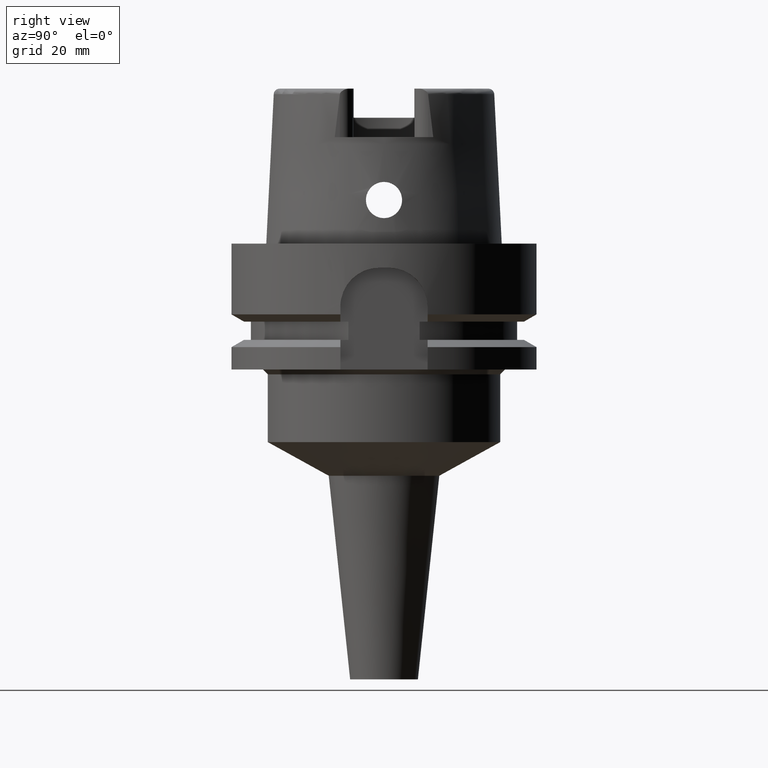
[diagram: clean part render]
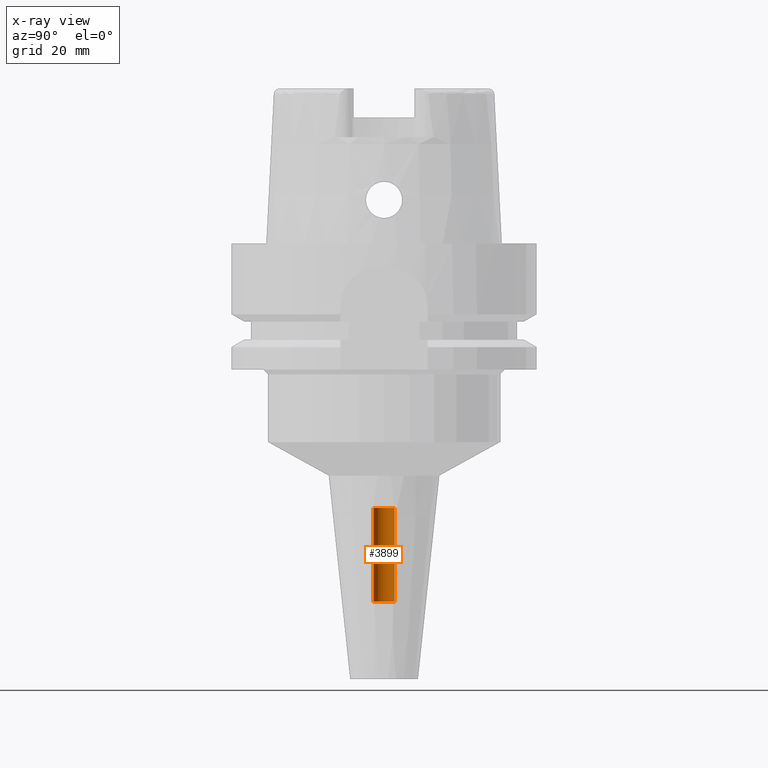
[diagram: x-ray — body ghosted, one internal face saturated and labeled with its STEP entity id]
A machine part, right view, then the same camera in x-ray: the body is ghosted and one INTERNAL B-rep face — a face not visible from any outside direction — is saturated and labeled: STEP entity #3899.
In plain terms, the highlighted cylindrical surface (edge-blend (fillet) strip) has radius 2.2 mm, axis along (0, 0, -1).
Its self-contained STEP definition (entity closure, byte-faithful):
#1782=CARTESIAN_POINT('',(0.E0,1.691237229622E-14,-7.4E1));
#1783=DIRECTION('',(0.E0,0.E0,-1.E0));
#1784=DIRECTION('',(0.E0,-1.E0,0.E0));
#1785=AXIS2_PLACEMENT_3D('',#1782,#1783,#1784);
#1814=DIRECTION('',(0.E0,0.E0,1.E0));
#1815=VECTOR('',#1814,1.94E1);
#1816=CARTESIAN_POINT('',(0.E0,-2.2E0,-7.4E1));
#1817=LINE('',#1816,#1815);
#1821=DIRECTION('',(0.E0,0.E0,1.E0));
#1822=VECTOR('',#1821,1.94E1);
#1823=CARTESIAN_POINT('',(0.E0,2.2E0,-7.4E1));
#1824=LINE('',#1823,#1822);
#1852=CARTESIAN_POINT('',(0.E0,1.691237229622E-14,-5.46E1));
#1853=DIRECTION('',(0.E0,0.E0,1.E0));
#1854=DIRECTION('',(0.E0,1.E0,0.E0));
#1855=AXIS2_PLACEMENT_3D('',#1852,#1853,#1854);
#2501=CARTESIAN_POINT('',(0.E0,-2.2E0,-7.4E1));
#2502=CARTESIAN_POINT('',(0.E0,2.2E0,-7.4E1));
#2503=VERTEX_POINT('',#2501);
#2504=VERTEX_POINT('',#2502);
#2505=CARTESIAN_POINT('',(0.E0,2.2E0,-5.46E1));
#2506=VERTEX_POINT('',#2505);
#2507=CARTESIAN_POINT('',(0.E0,-2.2E0,-5.46E1));
#2508=VERTEX_POINT('',#2507);
#3885=CARTESIAN_POINT('',(0.E0,1.691237229622E-14,3.81E1));
#3886=DIRECTION('',(0.E0,0.E0,-1.E0));
#3887=DIRECTION('',(0.E0,-1.E0,0.E0));
#3888=AXIS2_PLACEMENT_3D('',#3885,#3886,#3887);
#3889=CYLINDRICAL_SURFACE('',#3888,2.2E0);
#3891=ORIENTED_EDGE('',*,*,#3890,.F.);
#3892=ORIENTED_EDGE('',*,*,#3874,.F.);
#3894=ORIENTED_EDGE('',*,*,#3893,.T.);
#3896=ORIENTED_EDGE('',*,*,#3895,.F.);
#3897=EDGE_LOOP('',(#3891,#3892,#3894,#3896));
#3898=FACE_OUTER_BOUND('',#3897,.F.);
#1786=CIRCLE('',#1785,2.2E0);
#1856=CIRCLE('',#1855,2.2E0);
#3874=EDGE_CURVE('',#2503,#2504,#1786,.T.);
#3890=EDGE_CURVE('',#2504,#2506,#1824,.T.);
#3893=EDGE_CURVE('',#2503,#2508,#1817,.T.);
#3895=EDGE_CURVE('',#2506,#2508,#1856,.T.);
#3899=ADVANCED_FACE('',(#3898),#3889,.F.);